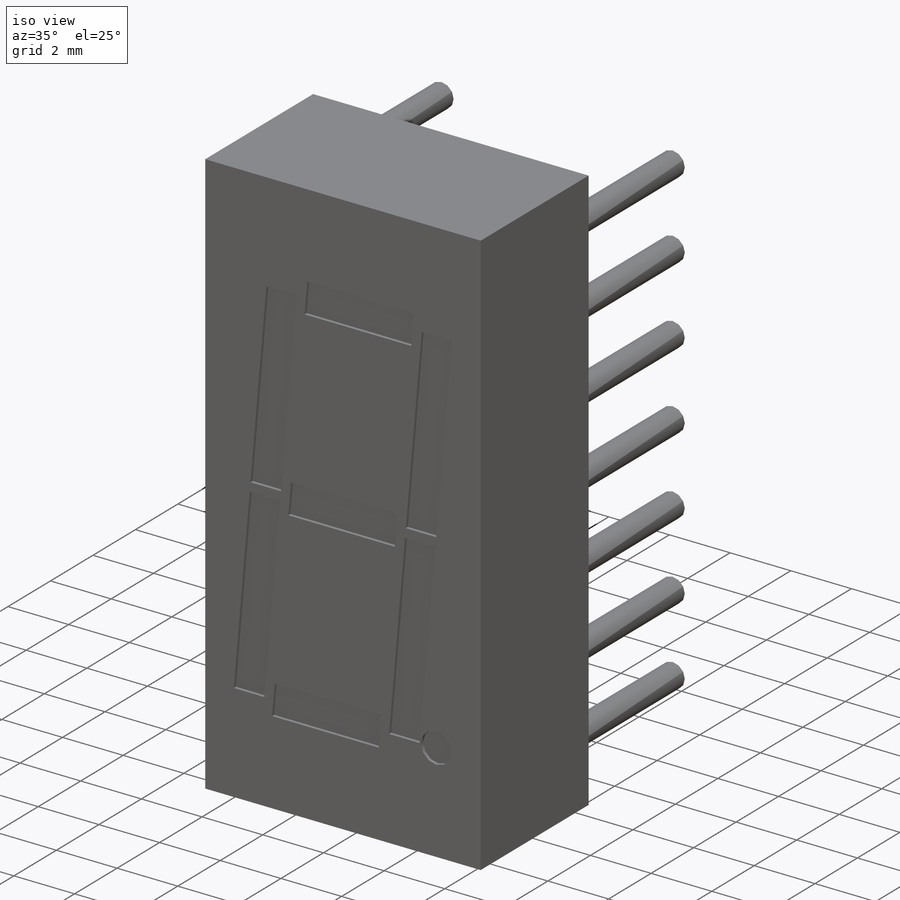
[diagram: iso view]
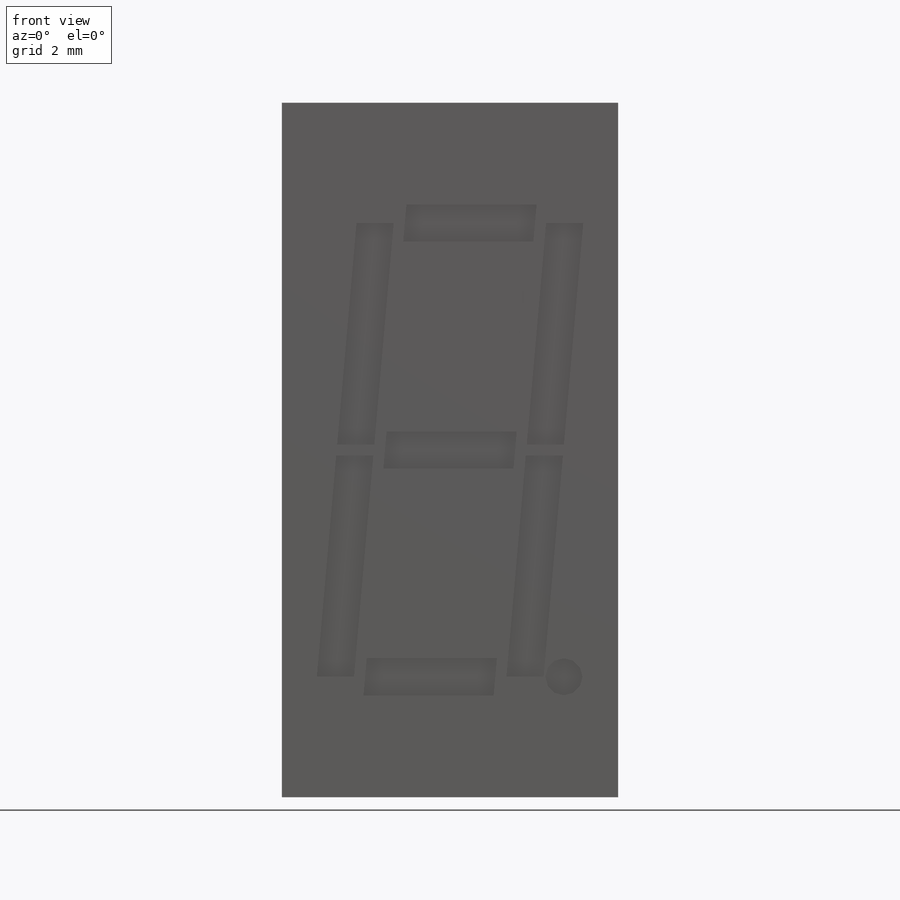
[diagram: front view]
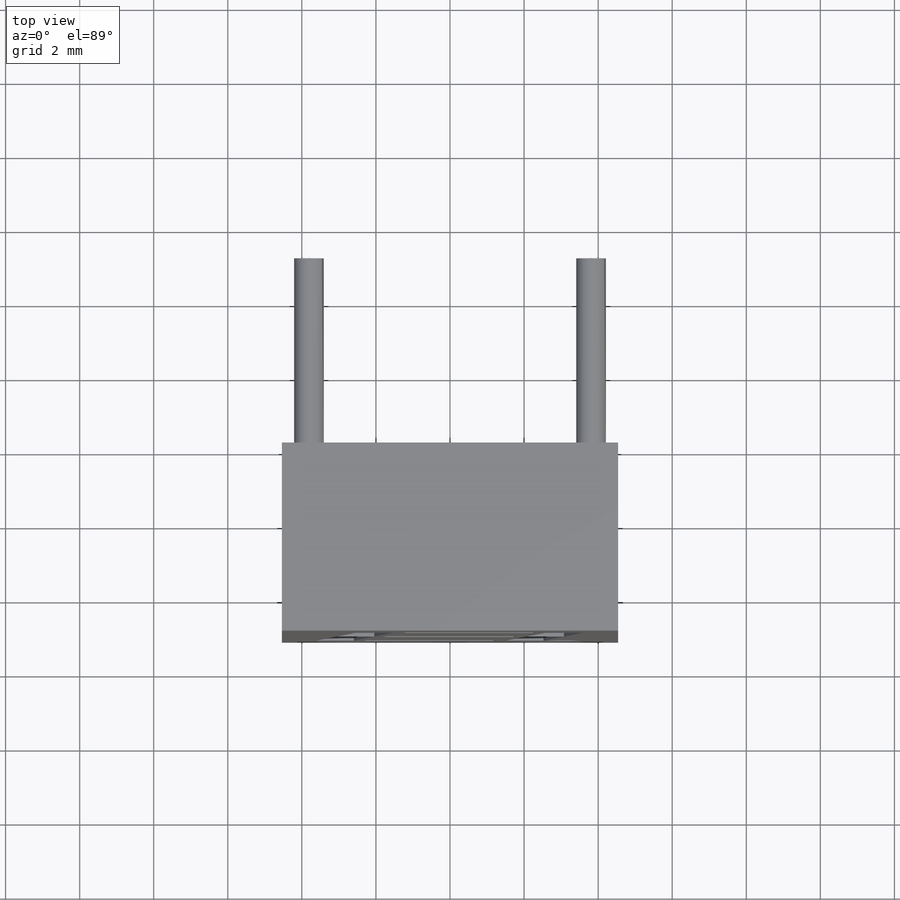
[diagram: top view]
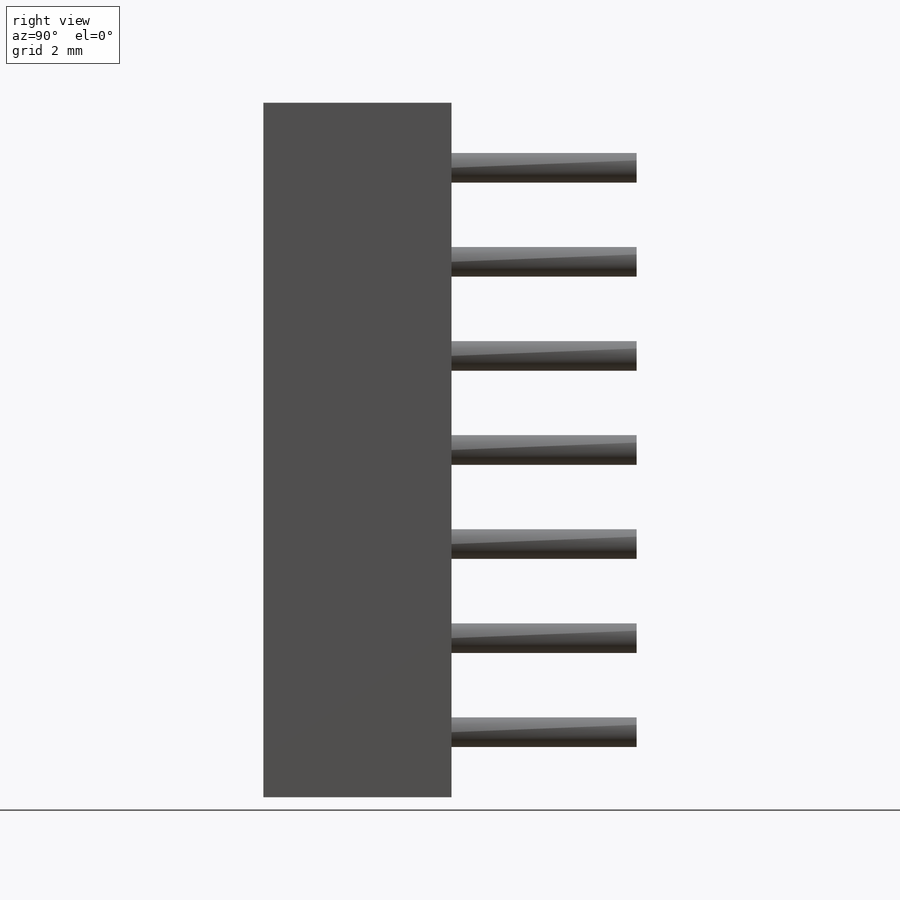
[diagram: right view]
SOLIDWORKS PART (.sldprt)
format: sldprt  version: not decoded by parser v0  size: 264,192 bytes
history: native  units: mm
features: sketch x4, extrude x2, pattern_linear x2, material x1, cut_extrude x1, plane x1 (+12 scaffold rows collapsed)
feature tree (23):
  scaffold x12  (default folders/planes/origin — collapsed)
  material  "Material <not specified>"
  sketch  "Sketch1"  dims[D1=9.08mm D2=18.75mm]
  extrude  "Body"  Depth=5.08mm
  sketch  "Sketch2"  dims[D2=0.8mm D1=7.62mm]
  extrude  "Pins"  Depth=5mm
  pattern_linear  "Pin Pattern 1"  Count1=4 Count2=1 Spacing1=2.54mm Spacing2=50mm
  pattern_linear  "Pin Pattern 2"  Count1=4 Count2=1 Spacing1=2.54mm Spacing2=50mm
  sketch  "Sketch3"  dims[c1.D6=1.0mm c1.D1=1.0mm c1.D2=3.5mm c1.D3=~6.806785mm c2.D3=5.0deg c2.D4=6.0mm c2.D5=0.3mm]
  cut_extrude  "LED Display"  Depth=0.1mm
  plane  "Board Surface"  Offset=2mm
  sketch  "Component_Outline"
decode coverage: 8 of 9 modeling features carry decoded parameters
note: ~ marks probable driven/reference dimensions
note: suppression state not decoded; provenance and decode notes live in map.json
